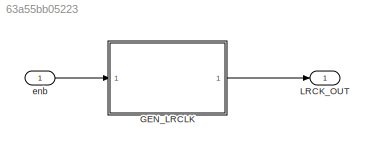
MODEL slx_63a55bb05223
KIND model
CONFIG AbsTol = auto
CONFIG EnableMultiTasking = off
CONFIG FixedStep = auto
CONFIG MaxStep = auto
CONFIG MinStep = auto
CONFIG RelTol = 1e-3
CONFIG SampleTimeConstraint = Unconstrained
CONFIG SolverName = FixedStepAuto
CONFIG StartTime = 0.0
CONFIG StopTime = 10.0
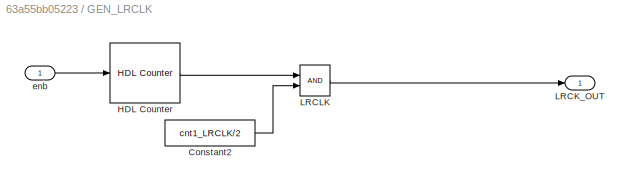
BLOCK [SubSystem] GEN_LRCLK
BLOCK [Constant] GEN_LRCLK/Constant2
  OutDataTypeStr = uint16
  Value = cnt1_LRCLK/2
BLOCK [Reference] GEN_LRCLK/HDL Counter  REF=hdlsllib/Sources/HDL Counter
  SourceBlock = hdlsllib/Sources/HDL Counter
  SourceType = HDL Counter
BLOCK [Outport] GEN_LRCLK/LRCK_OUT
  OutDataTypeStr = boolean
BLOCK [RelationalOperator] GEN_LRCLK/LRCLK
  InputSameDT = off
  OutDataTypeStr = boolean
BLOCK [Inport] GEN_LRCLK/enb
BLOCK [Outport] LRCK_OUT
  VectorParamsAs1DForOutWhenUnconnected = off
BLOCK [Inport] enb
LINE GEN_LRCLK/Constant2:1 -> GEN_LRCLK/LRCLK:2
LINE GEN_LRCLK/HDL Counter:1 -> GEN_LRCLK/LRCLK:1
LINE GEN_LRCLK/LRCLK:1 -> GEN_LRCLK/LRCK_OUT:1
LINE GEN_LRCLK/enb:1 -> GEN_LRCLK/HDL Counter:1
LINE GEN_LRCLK:1 -> LRCK_OUT:1
LINE enb:1 -> GEN_LRCLK:1
